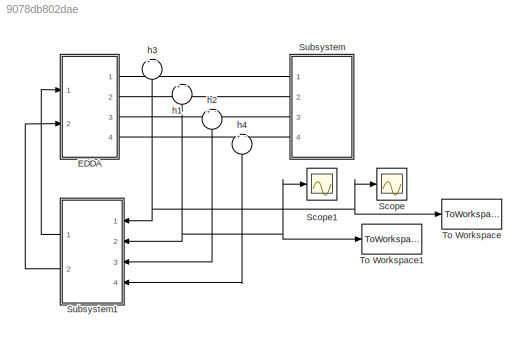
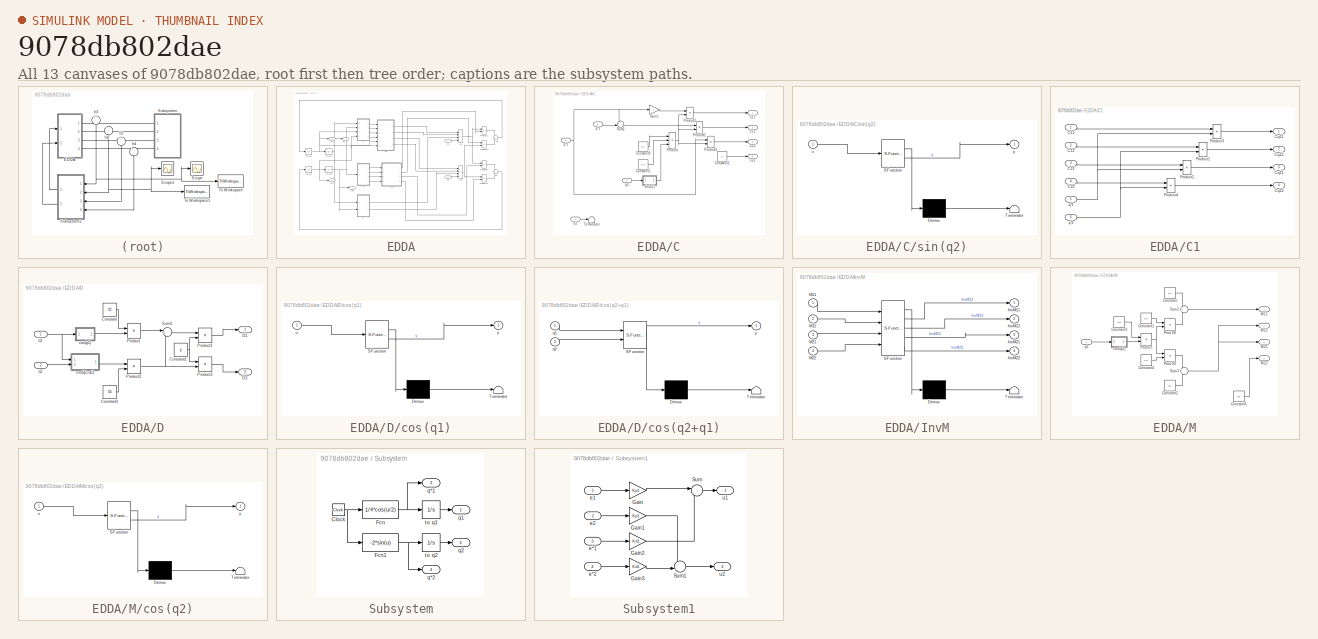
[diagram: thumbnail index - all 13 canvases of the model, root first then tree order]
MODEL slx_9078db802dae
KIND model
CONFIG AbsTol = auto
CONFIG EnableMultiTasking = off
CONFIG FixedStep = auto
CONFIG MaxStep = auto
CONFIG MinStep = auto
CONFIG RelTol = 1e-6
CONFIG SampleTimeConstraint = Unconstrained
CONFIG Solver = ode45
CONFIG SolverName = ode45
CONFIG StartTime = 0.0
CONFIG StopTime = T
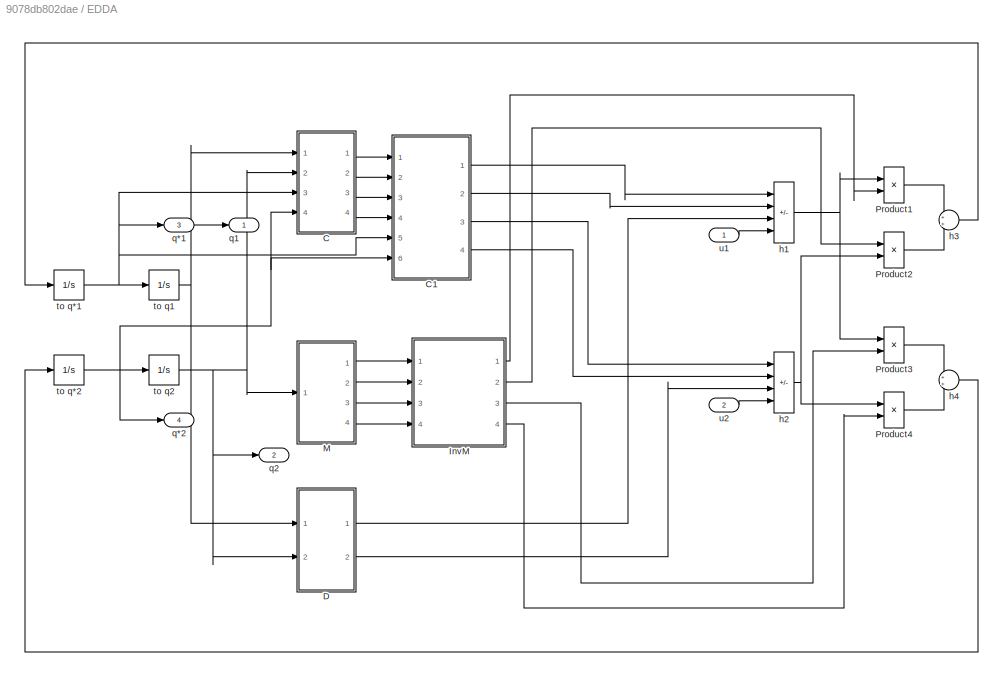
BLOCK [SubSystem] EDDA
  Ports = [2, 4]
  RequestExecContextInheritance = off
BLOCK [SubSystem] EDDA/C
  Ports = [4, 4]
  RequestExecContextInheritance = off
BLOCK [Outport] EDDA/C/C11
BLOCK [Outport] EDDA/C/C12
  Port = 2
BLOCK [Outport] EDDA/C/C21
  Port = 3
BLOCK [Outport] EDDA/C/C22
  Port = 4
BLOCK [Constant] EDDA/C/Constant1
  Value = 0.3
BLOCK [Constant] EDDA/C/Constant2
  Value = 0
BLOCK [Constant] EDDA/C/Constant3
  Value = O4
BLOCK [Gain] EDDA/C/Gain1
  Gain = -1
BLOCK [Product] EDDA/C/Product
  Inputs = 3
  Ports = [3, 1]
BLOCK [Product] EDDA/C/Product1
  Ports = [2, 1]
BLOCK [Product] EDDA/C/Product2
  Ports = [2, 1]
BLOCK [Product] EDDA/C/Product3
  Ports = [2, 1]
BLOCK [Sum] EDDA/C/Sum2
  Inputs = --|
  Ports = [2, 1]
BLOCK [Terminator] EDDA/C/Terminator
BLOCK [Inport] EDDA/C/q*1
  Port = 3
BLOCK [Inport] EDDA/C/q*2
  Port = 4
BLOCK [Inport] EDDA/C/q1
BLOCK [Inport] EDDA/C/q2
  Port = 2
BLOCK [SubSystem] EDDA/C/sin(q2)
  ErrorFcn = Stateflow.Translate.translate
  PermitHierarchicalResolution = ExplicitOnly
  Ports = [1, 1]
  RequestExecContextInheritance = off
  SFBlockType = MATLAB Function
  TreatAsAtomicUnit = on
BLOCK [Demux] EDDA/C/sin(q2)/ Demux 
  Outputs = 1
  Ports = [1, 1]
BLOCK [S-Function] EDDA/C/sin(q2)/ SFunction 
  EnableBusSupport = on
  FunctionName = sf_sfun
  PortCounts = [1 2]
  Ports = [1, 2]
  SFcnIsStateOwnerBlock = off
  SFunctionDeploymentMode = off
  Tag = Stateflow S-Function 3
BLOCK [Terminator] EDDA/C/sin(q2)/ Terminator 
BLOCK [Inport] EDDA/C/sin(q2)/u
BLOCK [Outport] EDDA/C/sin(q2)/y
BLOCK [SubSystem] EDDA/C1
  Ports = [6, 4]
  RequestExecContextInheritance = off
BLOCK [Inport] EDDA/C1/C11
BLOCK [Inport] EDDA/C1/C12
  Port = 2
BLOCK [Inport] EDDA/C1/C21
  Port = 3
BLOCK [Inport] EDDA/C1/C22
  Port = 4
BLOCK [Outport] EDDA/C1/Cq11
BLOCK [Outport] EDDA/C1/Cq12
  Port = 2
BLOCK [Outport] EDDA/C1/Cq21
  Port = 3
BLOCK [Outport] EDDA/C1/Cq22
  Port = 4
BLOCK [Product] EDDA/C1/Product1
  Ports = [2, 1]
BLOCK [Product] EDDA/C1/Product2
  Ports = [2, 1]
BLOCK [Product] EDDA/C1/Product3
  Ports = [2, 1]
BLOCK [Product] EDDA/C1/Product4
  Ports = [2, 1]
BLOCK [Inport] EDDA/C1/q*1
  Port = 5
BLOCK [Inport] EDDA/C1/q*2
  Port = 6
BLOCK [SubSystem] EDDA/D
  Ports = [2, 2]
  RequestExecContextInheritance = off
BLOCK [Constant] EDDA/D/Constant
  Value = O2
BLOCK [Constant] EDDA/D/Constant1
  Value = g
BLOCK [Constant] EDDA/D/Constant3
  Value = O4
BLOCK [Outport] EDDA/D/D1
BLOCK [Outport] EDDA/D/D2
  Port = 2
BLOCK [Product] EDDA/D/Product
  Ports = [2, 1]
BLOCK [Product] EDDA/D/Product1
  Ports = [2, 1]
BLOCK [Product] EDDA/D/Product2
  Ports = [2, 1]
BLOCK [Product] EDDA/D/Product3
  NameLocation = top
  Ports = [2, 1]
BLOCK [Sum] EDDA/D/Sum2
  Inputs = |++
  Ports = [2, 1]
BLOCK [SubSystem] EDDA/D/cos(q1)
  ErrorFcn = Stateflow.Translate.translate
  PermitHierarchicalResolution = ExplicitOnly
  Ports = [1, 1]
  RequestExecContextInheritance = off
  SFBlockType = MATLAB Function
  TreatAsAtomicUnit = on
BLOCK [Demux] EDDA/D/cos(q1)/ Demux 
  Outputs = 1
  Ports = [1, 1]
BLOCK [S-Function] EDDA/D/cos(q1)/ SFunction 
  EnableBusSupport = on
  FunctionName = sf_sfun
  PortCounts = [1 2]
  Ports = [1, 2]
  SFcnIsStateOwnerBlock = off
  SFunctionDeploymentMode = off
  Tag = Stateflow S-Function 4
BLOCK [Terminator] EDDA/D/cos(q1)/ Terminator 
BLOCK [Inport] EDDA/D/cos(q1)/u
BLOCK [Outport] EDDA/D/cos(q1)/y
BLOCK [SubSystem] EDDA/D/cos(q2+q1)
  ErrorFcn = Stateflow.Translate.translate
  PermitHierarchicalResolution = ExplicitOnly
  Ports = [2, 1]
  RequestExecContextInheritance = off
  SFBlockType = MATLAB Function
  TreatAsAtomicUnit = on
BLOCK [Demux] EDDA/D/cos(q2+q1)/ Demux 
  Outputs = 1
  Ports = [1, 1]
BLOCK [S-Function] EDDA/D/cos(q2+q1)/ SFunction 
  EnableBusSupport = on
  FunctionName = sf_sfun
  PortCounts = [2 2]
  Ports = [2, 2]
  SFcnIsStateOwnerBlock = off
  SFunctionDeploymentMode = off
  Tag = Stateflow S-Function 6
BLOCK [Terminator] EDDA/D/cos(q2+q1)/ Terminator 
BLOCK [Inport] EDDA/D/cos(q2+q1)/q1
BLOCK [Inport] EDDA/D/cos(q2+q1)/q2
  Port = 2
BLOCK [Outport] EDDA/D/cos(q2+q1)/y
BLOCK [Inport] EDDA/D/q1
BLOCK [Inport] EDDA/D/q2
  Port = 2
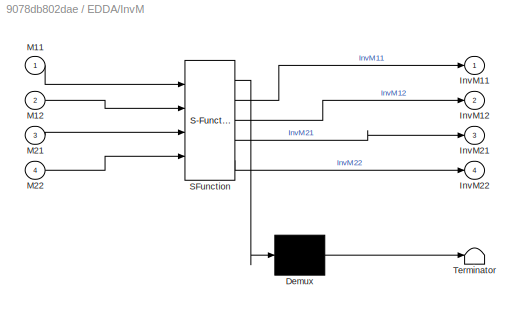
BLOCK [SubSystem] EDDA/InvM
  ErrorFcn = Stateflow.Translate.translate
  PermitHierarchicalResolution = ExplicitOnly
  Ports = [4, 4]
  RequestExecContextInheritance = off
  SFBlockType = MATLAB Function
  TreatAsAtomicUnit = on
BLOCK [Demux] EDDA/InvM/ Demux 
  Outputs = 1
  Ports = [1, 1]
BLOCK [S-Function] EDDA/InvM/ SFunction 
  EnableBusSupport = on
  FunctionName = sf_sfun
  PortCounts = [4 5]
  Ports = [4, 5]
  SFcnIsStateOwnerBlock = off
  SFunctionDeploymentMode = off
  Tag = Stateflow S-Function 2
BLOCK [Terminator] EDDA/InvM/ Terminator 
BLOCK [Outport] EDDA/InvM/InvM11
BLOCK [Outport] EDDA/InvM/InvM12
  Port = 2
BLOCK [Outport] EDDA/InvM/InvM21
  Port = 3
BLOCK [Outport] EDDA/InvM/InvM22
  Port = 4
BLOCK [Inport] EDDA/InvM/M11
BLOCK [Inport] EDDA/InvM/M12
  Port = 2
BLOCK [Inport] EDDA/InvM/M21
  Port = 3
BLOCK [Inport] EDDA/InvM/M22
  Port = 4
BLOCK [SubSystem] EDDA/M
  Ports = [1, 4]
  RequestExecContextInheritance = off
BLOCK [Constant] EDDA/M/Constant
  Value = O1
BLOCK [Constant] EDDA/M/Constant1
  Value = 0.6
BLOCK [Constant] EDDA/M/Constant2
  Value = O3
BLOCK [Constant] EDDA/M/Constant3
  Value = O4
BLOCK [Constant] EDDA/M/Constant4
  Value = 0.3
BLOCK [Constant] EDDA/M/Constant5
  Value = O3
BLOCK [Outport] EDDA/M/M11
BLOCK [Outport] EDDA/M/M12
  Port = 2
BLOCK [Outport] EDDA/M/M21
  Port = 3
BLOCK [Outport] EDDA/M/M22
  Port = 4
BLOCK [Product] EDDA/M/Prod 03
  Ports = [2, 1]
BLOCK [Product] EDDA/M/Prod 06
  Ports = [2, 1]
BLOCK [Product] EDDA/M/Product
  Ports = [2, 1]
BLOCK [Sum] EDDA/M/Sum2
  Ports = [2, 1]
BLOCK [Sum] EDDA/M/Sum3
  Ports = [2, 1]
BLOCK [SubSystem] EDDA/M/cos(q2)
  ErrorFcn = Stateflow.Translate.translate
  PermitHierarchicalResolution = ExplicitOnly
  Ports = [1, 1]
  RequestExecContextInheritance = off
  SFBlockType = MATLAB Function
  TreatAsAtomicUnit = on
BLOCK [Demux] EDDA/M/cos(q2)/ Demux 
  Outputs = 1
  Ports = [1, 1]
BLOCK [S-Function] EDDA/M/cos(q2)/ SFunction 
  EnableBusSupport = on
  FunctionName = sf_sfun
  PortCounts = [1 2]
  Ports = [1, 2]
  SFcnIsStateOwnerBlock = off
  SFunctionDeploymentMode = off
  Tag = Stateflow S-Function 1
BLOCK [Terminator] EDDA/M/cos(q2)/ Terminator 
BLOCK [Inport] EDDA/M/cos(q2)/u
BLOCK [Outport] EDDA/M/cos(q2)/y
BLOCK [Inport] EDDA/M/q2
BLOCK [Product] EDDA/Product1
  Ports = [2, 1]
BLOCK [Product] EDDA/Product2
  Ports = [2, 1]
BLOCK [Product] EDDA/Product3
  Ports = [2, 1]
BLOCK [Product] EDDA/Product4
  Ports = [2, 1]
BLOCK [Sum] EDDA/h1
  IconShape = rectangular
  Inputs = ---+
  Ports = [4, 1]
BLOCK [Sum] EDDA/h2
  IconShape = rectangular
  Inputs = ---+
  Ports = [4, 1]
BLOCK [Sum] EDDA/h3
  Ports = [2, 1]
BLOCK [Sum] EDDA/h4
  Ports = [2, 1]
BLOCK [Outport] EDDA/q*1
  Port = 3
BLOCK [Outport] EDDA/q*2
  Port = 4
BLOCK [Outport] EDDA/q1
BLOCK [Outport] EDDA/q2
  Port = 2
BLOCK [Integrator] EDDA/to q*1
  Ports = [1, 1]
BLOCK [Integrator] EDDA/to q*2
  Ports = [1, 1]
BLOCK [Integrator] EDDA/to q1
  Ports = [1, 1]
BLOCK [Integrator] EDDA/to q2
  Ports = [1, 1]
BLOCK [Inport] EDDA/u1
BLOCK [Inport] EDDA/u2
  Port = 2
BLOCK [Scope] Scope
  Floating = off
  NumInputPorts = 1
  Ports = [1]
  ScopeSpecificationString = Simulink.scopes.TimeScopeBlockCfg('CurrentConfiguration', extmgr.ConfigurationSet(extmgr.Configuration('Core','General UI',true),extmgr.Configuration('Core','Source UI',true),extmgr.Configuration('Sources','WiredSimulink',true),extmgr.Configuration('Visuals','Time Domain',true,'SerializedDisplays',{struct('MinYLimReal','-0.10933','MaxYLimReal','0.01215','YLabelReal','','MinYLimMag','0.00000','MaxY...<+1351ch>
BLOCK [Scope] Scope1
  Floating = off
  NumInputPorts = 1
  Ports = [1]
  ScopeSpecificationString = Simulink.scopes.TimeScopeBlockCfg('CurrentConfiguration', extmgr.ConfigurationSet(extmgr.Configuration('Core','General UI',true),extmgr.Configuration('Core','Source UI',true),extmgr.Configuration('Sources','WiredSimulink',true,'DataLoggingVariableName','ScopeData1'),extmgr.Configuration('Visuals','Time Domain',true,'SerializedDisplays',{struct('MinYLimReal','-2.25073','MaxYLimReal','0.25653','YLab...<+1390ch>
BLOCK [SubSystem] Subsystem
  Ports = [0, 4]
  RequestExecContextInheritance = off
BLOCK [Clock] Subsystem/Clock
BLOCK [Fcn] Subsystem/Fcn
  Expr = 1/4*cos(u/2)
BLOCK [Fcn] Subsystem/Fcn1
  Expr = -2*sin(u)
BLOCK [Outport] Subsystem/q*1
  Port = 3
BLOCK [Outport] Subsystem/q*2
  Port = 4
BLOCK [Outport] Subsystem/q1
BLOCK [Outport] Subsystem/q2
  Port = 2
BLOCK [Integrator] Subsystem/to q1
  Ports = [1, 1]
BLOCK [Integrator] Subsystem/to q2
  InitialCondition = 2
  Ports = [1, 1]
BLOCK [SubSystem] Subsystem1
  Ports = [4, 2]
  RequestExecContextInheritance = off
BLOCK [Gain] Subsystem1/Gain
  Gain = Kp1
BLOCK [Gain] Subsystem1/Gain1
  Gain = Kp1
BLOCK [Gain] Subsystem1/Gain2
  Gain = Kd1
BLOCK [Gain] Subsystem1/Gain3
  Gain = Kd1
BLOCK [Sum] Subsystem1/Sum
  Inputs = |--
  Ports = [2, 1]
BLOCK [Sum] Subsystem1/Sum1
  Inputs = --|
  Ports = [2, 1]
BLOCK [Inport] Subsystem1/e*1
  Port = 3
BLOCK [Inport] Subsystem1/e*2
  Port = 4
BLOCK [Inport] Subsystem1/e1
BLOCK [Inport] Subsystem1/e2
  Port = 2
BLOCK [Outport] Subsystem1/u1
BLOCK [Outport] Subsystem1/u2
  Port = 2
BLOCK [ToWorkspace] To Workspace
  FixptAsFi = on
  MaxDataPoints = inf
  Ports = [1]
  SampleTime = -1
  VariableName = e1
BLOCK [ToWorkspace] To Workspace1
  FixptAsFi = on
  MaxDataPoints = inf
  Ports = [1]
  SampleTime = -1
  VariableName = e2
BLOCK [Sum] h1
  Inputs = +-
  NameLocation = left
  Ports = [2, 1]
BLOCK [Sum] h2
  Inputs = +-
  NameLocation = left
  Ports = [2, 1]
BLOCK [Sum] h3
  Inputs = +-
  NameLocation = left
  Ports = [2, 1]
BLOCK [Sum] h4
  Inputs = +-
  NameLocation = left
  Ports = [2, 1]
LINE EDDA/C/Constant1:1 -> EDDA/C/Product:2
LINE EDDA/C/Constant2:1 -> EDDA/C/C22:1
LINE EDDA/C/Constant3:1 -> EDDA/C/Product:1
LINE EDDA/C/Gain1:1 -> EDDA/C/Product1:1
LINE EDDA/C/Product1:1 -> EDDA/C/C11:1
LINE EDDA/C/Product2:1 -> EDDA/C/C12:1
LINE EDDA/C/Product3:1 -> EDDA/C/C21:1
NET EDDA/C/Product:1 -> EDDA/C/Product1:2, EDDA/C/Product2:2, EDDA/C/Product3:2
LINE EDDA/C/Sum2:1 -> EDDA/C/Product2:1
NET EDDA/C/q*1:1 -> EDDA/C/Gain1:1, EDDA/C/Product3:1, EDDA/C/Sum2:1
LINE EDDA/C/q*2:1 -> EDDA/C/Sum2:2
LINE EDDA/C/q1:1 -> EDDA/C/Terminator:1
LINE EDDA/C/q2:1 -> EDDA/C/sin(q2):1
LINE EDDA/C/sin(q2):1 -> EDDA/C/Product:3
LINE EDDA/C1/C11:1 -> EDDA/C1/Product3:1
LINE EDDA/C1/C12:1 -> EDDA/C1/Product1:1
LINE EDDA/C1/C21:1 -> EDDA/C1/Product2:1
LINE EDDA/C1/C22:1 -> EDDA/C1/Product4:1
LINE EDDA/C1/Product1:1 -> EDDA/C1/Cq12:1
LINE EDDA/C1/Product2:1 -> EDDA/C1/Cq21:1
LINE EDDA/C1/Product3:1 -> EDDA/C1/Cq11:1
LINE EDDA/C1/Product4:1 -> EDDA/C1/Cq22:1
NET EDDA/C1/q*1:1 -> EDDA/C1/Product2:2, EDDA/C1/Product3:2
NET EDDA/C1/q*2:1 -> EDDA/C1/Product1:2, EDDA/C1/Product4:2
LINE EDDA/C1:1 -> EDDA/h1:1
LINE EDDA/C1:2 -> EDDA/h1:2
LINE EDDA/C1:3 -> EDDA/h2:1
LINE EDDA/C1:4 -> EDDA/h2:2
LINE EDDA/C:1 -> EDDA/C1:1
LINE EDDA/C:2 -> EDDA/C1:2
LINE EDDA/C:3 -> EDDA/C1:3
LINE EDDA/C:4 -> EDDA/C1:4
NET EDDA/D/Constant1:1 -> EDDA/D/Product1:2, EDDA/D/Product3:1
LINE EDDA/D/Constant3:1 -> EDDA/D/Product2:2
LINE EDDA/D/Constant:1 -> EDDA/D/Product:1
LINE EDDA/D/Product1:1 -> EDDA/D/D1:1
NET EDDA/D/Product2:1 -> EDDA/D/Product3:2, EDDA/D/Sum2:2
LINE EDDA/D/Product3:1 -> EDDA/D/D2:1
LINE EDDA/D/Product:1 -> EDDA/D/Sum2:1
LINE EDDA/D/Sum2:1 -> EDDA/D/Product1:1
LINE EDDA/D/cos(q1):1 -> EDDA/D/Product:2
LINE EDDA/D/cos(q2+q1):1 -> EDDA/D/Product2:1
NET EDDA/D/q1:1 -> EDDA/D/cos(q1):1, EDDA/D/cos(q2+q1):1
LINE EDDA/D/q2:1 -> EDDA/D/cos(q2+q1):2
LINE EDDA/D:1 -> EDDA/h1:3
LINE EDDA/D:2 -> EDDA/h2:3
LINE EDDA/InvM:1 -> EDDA/Product1:2
LINE EDDA/InvM:2 -> EDDA/Product2:1
LINE EDDA/InvM:3 -> EDDA/Product3:2
LINE EDDA/InvM:4 -> EDDA/Product4:2
LINE EDDA/M/Constant1:1 -> EDDA/M/Prod 06:1
LINE EDDA/M/Constant2:1 -> EDDA/M/Sum3:2
LINE EDDA/M/Constant3:1 -> EDDA/M/Product:1
LINE EDDA/M/Constant4:1 -> EDDA/M/Prod 03:2
LINE EDDA/M/Constant5:1 -> EDDA/M/M22:1
LINE EDDA/M/Constant:1 -> EDDA/M/Sum2:1
LINE EDDA/M/Prod 03:1 -> EDDA/M/Sum3:1
LINE EDDA/M/Prod 06:1 -> EDDA/M/Sum2:2
NET EDDA/M/Product:1 -> EDDA/M/Prod 03:1, EDDA/M/Prod 06:2
LINE EDDA/M/Sum2:1 -> EDDA/M/M11:1
NET EDDA/M/Sum3:1 -> EDDA/M/M12:1, EDDA/M/M21:1
LINE EDDA/M/cos(q2):1 -> EDDA/M/Product:2
LINE EDDA/M/q2:1 -> EDDA/M/cos(q2):1
LINE EDDA/M:1 -> EDDA/InvM:1
LINE EDDA/M:2 -> EDDA/InvM:2
LINE EDDA/M:3 -> EDDA/InvM:3
LINE EDDA/M:4 -> EDDA/InvM:4
LINE EDDA/Product1:1 -> EDDA/h3:1
LINE EDDA/Product2:1 -> EDDA/h3:2
LINE EDDA/Product3:1 -> EDDA/h4:1
LINE EDDA/Product4:1 -> EDDA/h4:2
NET EDDA/h1:1 -> EDDA/Product1:1, EDDA/Product3:1
NET EDDA/h2:1 -> EDDA/Product2:2, EDDA/Product4:1
LINE EDDA/h3:1 -> EDDA/to q*1:1
LINE EDDA/h4:1 -> EDDA/to q*2:1
NET EDDA/to q*1:1 -> EDDA/C1:5, EDDA/C:3, EDDA/q*1:1, EDDA/to q1:1
NET EDDA/to q*2:1 -> EDDA/C1:6, EDDA/C:4, EDDA/q*2:1, EDDA/to q2:1
NET EDDA/to q1:1 -> EDDA/C:1, EDDA/D:1, EDDA/q1:1
NET EDDA/to q2:1 -> EDDA/C:2, EDDA/D:2, EDDA/M:1, EDDA/q2:1
LINE EDDA/u1:1 -> EDDA/h1:4
LINE EDDA/u2:1 -> EDDA/h2:4
LINE EDDA:1 -> h3:1
LINE EDDA:2 -> h1:1
LINE EDDA:3 -> h2:1
LINE EDDA:4 -> h4:1
NET Subsystem/Clock:1 -> Subsystem/Fcn1:1, Subsystem/Fcn:1
NET Subsystem/Fcn1:1 -> Subsystem/q*2:1, Subsystem/to q2:1
NET Subsystem/Fcn:1 -> Subsystem/q*1:1, Subsystem/to q1:1
LINE Subsystem/to q1:1 -> Subsystem/q1:1
LINE Subsystem/to q2:1 -> Subsystem/q2:1
LINE Subsystem1/Gain1:1 -> Subsystem1/Sum1:1
LINE Subsystem1/Gain2:1 -> Subsystem1/Sum:2
LINE Subsystem1/Gain3:1 -> Subsystem1/Sum1:2
LINE Subsystem1/Gain:1 -> Subsystem1/Sum:1
LINE Subsystem1/Sum1:1 -> Subsystem1/u2:1
LINE Subsystem1/Sum:1 -> Subsystem1/u1:1
LINE Subsystem1/e*1:1 -> Subsystem1/Gain2:1
LINE Subsystem1/e*2:1 -> Subsystem1/Gain3:1
LINE Subsystem1/e1:1 -> Subsystem1/Gain:1
LINE Subsystem1/e2:1 -> Subsystem1/Gain1:1
LINE Subsystem1:1 -> EDDA:1
LINE Subsystem1:2 -> EDDA:2
LINE Subsystem:1 -> h3:2
LINE Subsystem:2 -> h1:2
LINE Subsystem:3 -> h2:2
LINE Subsystem:4 -> h4:2
NET h1:1 -> Scope1:1, Subsystem1:2, To Workspace1:1
LINE h2:1 -> Subsystem1:3
NET h3:1 -> Scope:1, Subsystem1:1, To Workspace:1
LINE h4:1 -> Subsystem1:4
note: NET lines group one-source signal fan-out (src -> all destinations, sorted); 1:1 wires keep LINE
CHART EDDA/M/cos(q2) states=1 transitions=1
  STATE_LABEL 'eML_blk_kernel()'
  STATE_LABEL 'SCRIPT:\nfunction y = fcn(u)\n\ny = cos(u);\n'
CHART EDDA/InvM states=1 transitions=1
  STATE_LABEL 'eML_blk_kernel()'
  STATE_LABEL 'SCRIPT:\nfunction [InvM11, InvM12, InvM21, InvM22] = fcn(M11, M12, M21, M22)\n\nM = [M11 M12; M21 M22];\nM = inv(M);\n\nInvM11 = M(1);\nInvM12 = M(2);\nInvM21 = M(3);\nInvM22 = M(4);\n'
CHART EDDA/C/sin(q2) states=1 transitions=1
  STATE_LABEL 'eML_blk_kernel()'
  STATE_LABEL 'SCRIPT:\nfunction y = fcn(u)\n\ny = sin(u);\n'
CHART EDDA/D/cos(q1) states=1 transitions=1
  STATE_LABEL 'eML_blk_kernel()'
  STATE_LABEL 'SCRIPT:\nfunction y = fcn(u)\n\ny = cos(u);\n'
CHART EDDA/D/cos(q2+q1) states=1 transitions=1
  STATE_LABEL 'eML_blk_kernel()'
  STATE_LABEL 'SCRIPT:\nfunction y  = fcn(q1, q2)\n\ny = cos(q1 + q2);\n'
CHART  states=0 transitions=0
CHART  states=0 transitions=0
CHART  states=0 transitions=0
CHART  states=0 transitions=0
CHART  states=0 transitions=0
